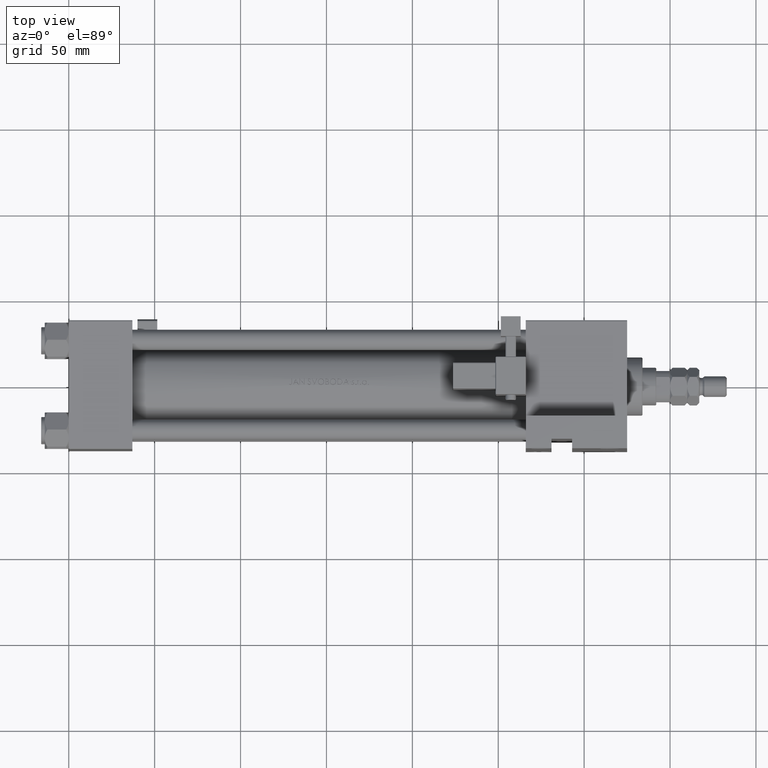
[diagram: clean part render]
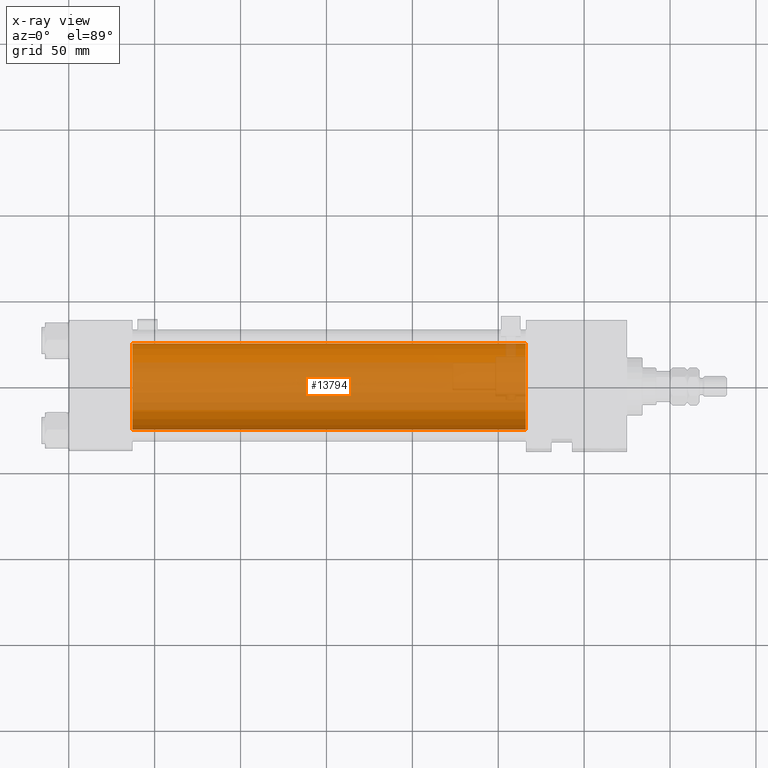
[diagram: x-ray — body ghosted, one internal face saturated and labeled with its STEP entity id]
A machine part, top view, then the same camera in x-ray: the body is ghosted and one INTERNAL B-rep face — a face not visible from any outside direction — is saturated and labeled: STEP entity #13794.
In plain terms, the highlighted cylindrical surface (partial cylindrical patch) has radius 25 mm, axis along (-1, -0, 0).
Its self-contained STEP definition (entity closure, byte-faithful):
#161 = EDGE_CURVE ( 'NONE', #21502, #28066, #47215, .T. ) ;
#406 = DIRECTION ( 'NONE',  ( -1.000000000000000000, -0.000000000000000000, -0.000000000000000000 ) ) ;
#2490 = FACE_OUTER_BOUND ( 'NONE', #13937, .T. ) ;
#2731 = DIRECTION ( 'NONE',  ( 0.000000000000000000, 0.000000000000000000, -1.000000000000000000 ) ) ;
#2737 = CYLINDRICAL_SURFACE ( 'NONE', #48530, 25.00000000000000000 ) ;
#5377 = CARTESIAN_POINT ( 'NONE',  ( 266.0000000000000000, 3.122849337825749828E-15, -25.50000000000000355 ) ) ;
#6585 = AXIS2_PLACEMENT_3D ( 'NONE', #10781, #22748, #2731 ) ;
#7355 = EDGE_CURVE ( 'NONE', #22546, #28066, #31498, .T. ) ;
#8947 = EDGE_CURVE ( 'NONE', #34299, #21502, #26039, .T. ) ;
#10542 = DIRECTION ( 'NONE',  ( 0.000000000000000000, 0.000000000000000000, -1.000000000000000000 ) ) ;
#10781 = CARTESIAN_POINT ( 'NONE',  ( 37.00000000000000000, 6.123233995736772199E-17, -0.5000000000000004441 ) ) ;
#13794 = ADVANCED_FACE ( 'NONE', ( #2490 ), #2737, .F. ) ;
#13937 = EDGE_LOOP ( 'NONE', ( #41494, #40880, #41762, #33041 ) ) ;
#13987 = DIRECTION ( 'NONE',  ( -1.000000000000000000, -0.000000000000000000, -0.000000000000000000 ) ) ;
#16095 = CARTESIAN_POINT ( 'NONE',  ( 37.00000000000000000, 3.122849337825749828E-15, -25.50000000000000355 ) ) ;
#18506 = CARTESIAN_POINT ( 'NONE',  ( 266.0000000000000000, 6.123233995736772199E-17, 24.50000000000000000 ) ) ;
#21502 = VERTEX_POINT ( 'NONE', #18506 ) ;
#22546 = VERTEX_POINT ( 'NONE', #16095 ) ;
#22748 = DIRECTION ( 'NONE',  ( 1.000000000000000000, 0.000000000000000000, 0.000000000000000000 ) ) ;
#23555 = CARTESIAN_POINT ( 'NONE',  ( 266.0000000000000000, 6.123233995736772199E-17, 24.50000000000000000 ) ) ;
#26039 = CIRCLE ( 'NONE', #28506, 25.00000000000000000 ) ;
#26139 = DIRECTION ( 'NONE',  ( 0.000000000000000000, 0.000000000000000000, 1.000000000000000000 ) ) ;
#26392 = DIRECTION ( 'NONE',  ( -1.000000000000000000, -0.000000000000000000, -0.000000000000000000 ) ) ;
#28066 = VERTEX_POINT ( 'NONE', #39205 ) ;
#28506 = AXIS2_PLACEMENT_3D ( 'NONE', #43037, #50313, #10542 ) ;
#29770 = EDGE_CURVE ( 'NONE', #34299, #22546, #48560, .T. ) ;
#31498 = CIRCLE ( 'NONE', #6585, 25.00000000000000000 ) ;
#32863 = VECTOR ( 'NONE', #406, 1000.000000000000000 ) ;
#33041 = ORIENTED_EDGE ( 'NONE', *, *, #7355, .F. ) ;
#34219 = CARTESIAN_POINT ( 'NONE',  ( 266.0000000000000000, 3.122849337825749828E-15, -25.50000000000000355 ) ) ;
#34299 = VERTEX_POINT ( 'NONE', #34219 ) ;
#39205 = CARTESIAN_POINT ( 'NONE',  ( 37.00000000000000000, 6.123233995736772199E-17, 24.50000000000000000 ) ) ;
#40880 = ORIENTED_EDGE ( 'NONE', *, *, #8947, .T. ) ;
#41494 = ORIENTED_EDGE ( 'NONE', *, *, #29770, .F. ) ;
#41762 = ORIENTED_EDGE ( 'NONE', *, *, #161, .T. ) ;
#43027 = CARTESIAN_POINT ( 'NONE',  ( 266.0000000000000000, 6.123233995736772199E-17, -0.5000000000000004441 ) ) ;
#43037 = CARTESIAN_POINT ( 'NONE',  ( 266.0000000000000000, 6.123233995736772199E-17, -0.5000000000000004441 ) ) ;
#45012 = VECTOR ( 'NONE', #13987, 1000.000000000000000 ) ;
#47215 = LINE ( 'NONE', #23555, #32863 ) ;
#48530 = AXIS2_PLACEMENT_3D ( 'NONE', #43027, #26392, #26139 ) ;
#48560 = LINE ( 'NONE', #5377, #45012 ) ;
#50313 = DIRECTION ( 'NONE',  ( 1.000000000000000000, 0.000000000000000000, 0.000000000000000000 ) ) ;